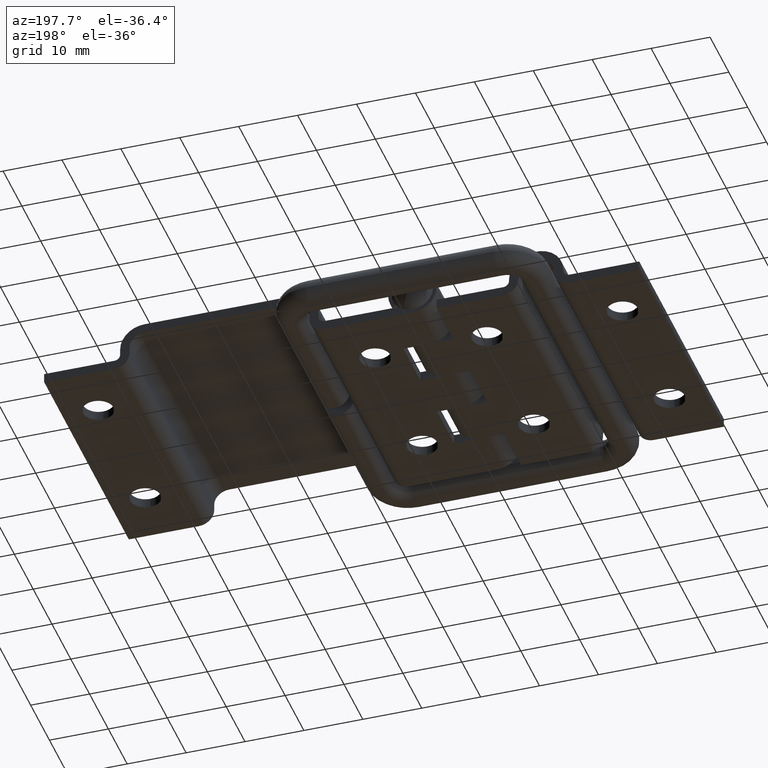
[diagram: clean part render]
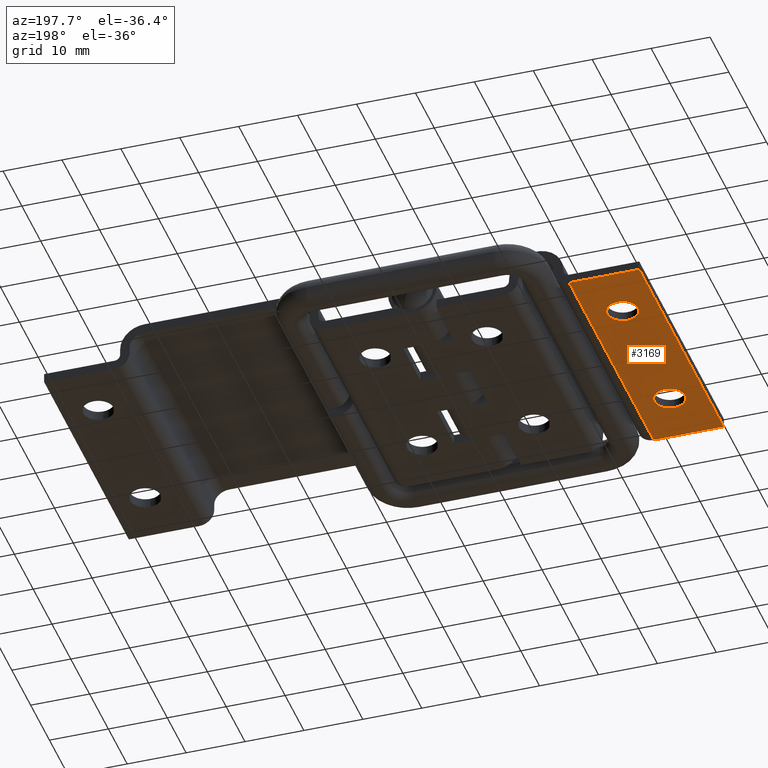
[diagram: same view with one face highlighted and labeled with its STEP entity id]
A machine part, auxiliary view. The second image highlights one B-rep face of the part: STEP entity #3169.
In plain terms, the highlighted planar face has unit normal (0, -0, 1).
Its self-contained STEP definition (entity closure, byte-faithful):
#37 = FACE_BOUND ( 'NONE', #3597, .T. ) ;
#57 = EDGE_LOOP ( 'NONE', ( #2355, #4294, #1763, #536 ) ) ;
#78 = VERTEX_POINT ( 'NONE', #3078 ) ;
#95 = DIRECTION ( 'NONE',  ( -0.0000000000000000000, -1.000000000000000000, -0.0000000000000000000 ) ) ;
#132 = EDGE_CURVE ( 'NONE', #2057, #4259, #1334, .T. ) ;
#136 = CARTESIAN_POINT ( 'NONE',  ( -32.50000000000000000, 4.099998000000050000, 10.00000000000000000 ) ) ;
#188 = VERTEX_POINT ( 'NONE', #3655 ) ;
#429 = CARTESIAN_POINT ( 'NONE',  ( -32.50000000000000000, 4.099998000000050000, 10.00000000000000000 ) ) ;
#473 = DIRECTION ( 'NONE',  ( 0.0000000000000000000, 0.0000000000000000000, 1.000000000000000000 ) ) ;
#507 = AXIS2_PLACEMENT_3D ( 'NONE', #3887, #1916, #4221 ) ;
#536 = ORIENTED_EDGE ( 'NONE', *, *, #2378, .T. ) ;
#755 = DIRECTION ( 'NONE',  ( 0.0000000000000000000, 0.0000000000000000000, 1.000000000000000000 ) ) ;
#759 = VECTOR ( 'NONE', #1631, 1000.000000000000000 ) ;
#760 = VECTOR ( 'NONE', #4140, 1000.000000000000000 ) ;
#793 = CARTESIAN_POINT ( 'NONE',  ( -32.50000000000000000, 4.099998000000050000, 35.00000000000000000 ) ) ;
#797 = FACE_BOUND ( 'NONE', #4149, .T. ) ;
#841 = CARTESIAN_POINT ( 'NONE',  ( -26.60322290247975000, 4.099997999999999400, 1000.000000000000000 ) ) ;
#849 = DIRECTION ( 'NONE',  ( -1.000000000000000000, -0.0000000000000000000, -0.0000000000000000000 ) ) ;
#981 = CIRCLE ( 'NONE', #2140, 2.600000000000000100 ) ;
#1059 = ORIENTED_EDGE ( 'NONE', *, *, #2312, .T. ) ;
#1137 = DIRECTION ( 'NONE',  ( 0.0000000000000000000, 0.0000000000000000000, 1.000000000000000000 ) ) ;
#1171 = CIRCLE ( 'NONE', #507, 2.599999999999998300 ) ;
#1296 = CARTESIAN_POINT ( 'NONE',  ( -26.60322290247975000, 4.099997999999999400, 0.0000000000000000000 ) ) ;
#1334 = CIRCLE ( 'NONE', #1906, 2.600000000000000100 ) ;
#1447 = VECTOR ( 'NONE', #849, 1000.000000000000000 ) ;
#1502 = EDGE_CURVE ( 'NONE', #4101, #78, #1171, .T. ) ;
#1527 = DIRECTION ( 'NONE',  ( 0.0000000000000000000, 0.0000000000000000000, -1.000000000000000000 ) ) ;
#1552 = LINE ( 'NONE', #2846, #1447 ) ;
#1558 = EDGE_CURVE ( 'NONE', #2860, #3555, #1673, .T. ) ;
#1602 = CARTESIAN_POINT ( 'NONE',  ( -26.60322290247975000, 4.099997999999999400, 45.00000000000000000 ) ) ;
#1631 = DIRECTION ( 'NONE',  ( -1.000000000000000000, -0.0000000000000000000, -0.0000000000000000000 ) ) ;
#1673 = LINE ( 'NONE', #3612, #759 ) ;
#1675 = LINE ( 'NONE', #4122, #760 ) ;
#1763 = ORIENTED_EDGE ( 'NONE', *, *, #2437, .F. ) ;
#1871 = AXIS2_PLACEMENT_3D ( 'NONE', #841, #3503, #1527 ) ;
#1906 = AXIS2_PLACEMENT_3D ( 'NONE', #429, #95, #755 ) ;
#1916 = DIRECTION ( 'NONE',  ( -0.0000000000000000000, -1.000000000000000000, -0.0000000000000000000 ) ) ;
#1929 = VERTEX_POINT ( 'NONE', #1602 ) ;
#1948 = AXIS2_PLACEMENT_3D ( 'NONE', #793, #3116, #1137 ) ;
#2057 = VERTEX_POINT ( 'NONE', #3602 ) ;
#2140 = AXIS2_PLACEMENT_3D ( 'NONE', #136, #2470, #473 ) ;
#2179 = CARTESIAN_POINT ( 'NONE',  ( -38.50000000000000000, 4.099997999999999400, 1000.000000000000000 ) ) ;
#2220 = VECTOR ( 'NONE', #3820, 1000.000000000000000 ) ;
#2288 = EDGE_CURVE ( 'NONE', #78, #4101, #2749, .T. ) ;
#2312 = EDGE_CURVE ( 'NONE', #4259, #2057, #981, .T. ) ;
#2355 = ORIENTED_EDGE ( 'NONE', *, *, #1558, .T. ) ;
#2378 = EDGE_CURVE ( 'NONE', #1929, #2860, #1675, .T. ) ;
#2417 = ORIENTED_EDGE ( 'NONE', *, *, #2288, .T. ) ;
#2437 = EDGE_CURVE ( 'NONE', #1929, #188, #1552, .T. ) ;
#2439 = EDGE_CURVE ( 'NONE', #188, #3555, #4092, .T. ) ;
#2470 = DIRECTION ( 'NONE',  ( -0.0000000000000000000, -1.000000000000000000, -0.0000000000000000000 ) ) ;
#2629 = CARTESIAN_POINT ( 'NONE',  ( -32.50000000000000000, 4.099998000000050000, 7.400000000000000400 ) ) ;
#2749 = CIRCLE ( 'NONE', #1948, 2.599999999999998300 ) ;
#2846 = CARTESIAN_POINT ( 'NONE',  ( 0.0000000000000000000, 4.099997999999999400, 45.00000000000000000 ) ) ;
#2847 = ORIENTED_EDGE ( 'NONE', *, *, #132, .T. ) ;
#2860 = VERTEX_POINT ( 'NONE', #1296 ) ;
#3016 = CARTESIAN_POINT ( 'NONE',  ( -38.50000000000000000, 4.099997999999999400, 0.0000000000000000000 ) ) ;
#3078 = CARTESIAN_POINT ( 'NONE',  ( -32.50000000000000000, 4.099998000000050000, 32.40000000000000600 ) ) ;
#3113 = CARTESIAN_POINT ( 'NONE',  ( -32.50000000000000000, 4.099998000000050000, 37.60000000000000100 ) ) ;
#3116 = DIRECTION ( 'NONE',  ( -0.0000000000000000000, -1.000000000000000000, -0.0000000000000000000 ) ) ;
#3165 = PLANE ( 'NONE',  #1871 ) ;
#3169 = ADVANCED_FACE ( 'NONE', ( #797, #3450, #37 ), #3165, .F. ) ;
#3380 = ORIENTED_EDGE ( 'NONE', *, *, #1502, .T. ) ;
#3450 = FACE_OUTER_BOUND ( 'NONE', #57, .T. ) ;
#3503 = DIRECTION ( 'NONE',  ( 0.0000000000000000000, -1.000000000000000000, 0.0000000000000000000 ) ) ;
#3555 = VERTEX_POINT ( 'NONE', #3016 ) ;
#3597 = EDGE_LOOP ( 'NONE', ( #3380, #2417 ) ) ;
#3602 = CARTESIAN_POINT ( 'NONE',  ( -32.50000000000000000, 4.099998000000050000, 12.60000000000000000 ) ) ;
#3612 = CARTESIAN_POINT ( 'NONE',  ( 0.0000000000000000000, 4.099997999999999400, 0.0000000000000000000 ) ) ;
#3655 = CARTESIAN_POINT ( 'NONE',  ( -38.50000000000000000, 4.099997999999999400, 45.00000000000000000 ) ) ;
#3820 = DIRECTION ( 'NONE',  ( 0.0000000000000000000, 0.0000000000000000000, -1.000000000000000000 ) ) ;
#3887 = CARTESIAN_POINT ( 'NONE',  ( -32.50000000000000000, 4.099998000000050000, 35.00000000000000000 ) ) ;
#4092 = LINE ( 'NONE', #2179, #2220 ) ;
#4101 = VERTEX_POINT ( 'NONE', #3113 ) ;
#4122 = CARTESIAN_POINT ( 'NONE',  ( -26.60322290247975000, 4.099997999999999400, 1000.000000000000000 ) ) ;
#4140 = DIRECTION ( 'NONE',  ( 0.0000000000000000000, 0.0000000000000000000, -1.000000000000000000 ) ) ;
#4149 = EDGE_LOOP ( 'NONE', ( #2847, #1059 ) ) ;
#4221 = DIRECTION ( 'NONE',  ( 0.0000000000000000000, 0.0000000000000000000, 1.000000000000000000 ) ) ;
#4259 = VERTEX_POINT ( 'NONE', #2629 ) ;
#4294 = ORIENTED_EDGE ( 'NONE', *, *, #2439, .F. ) ;